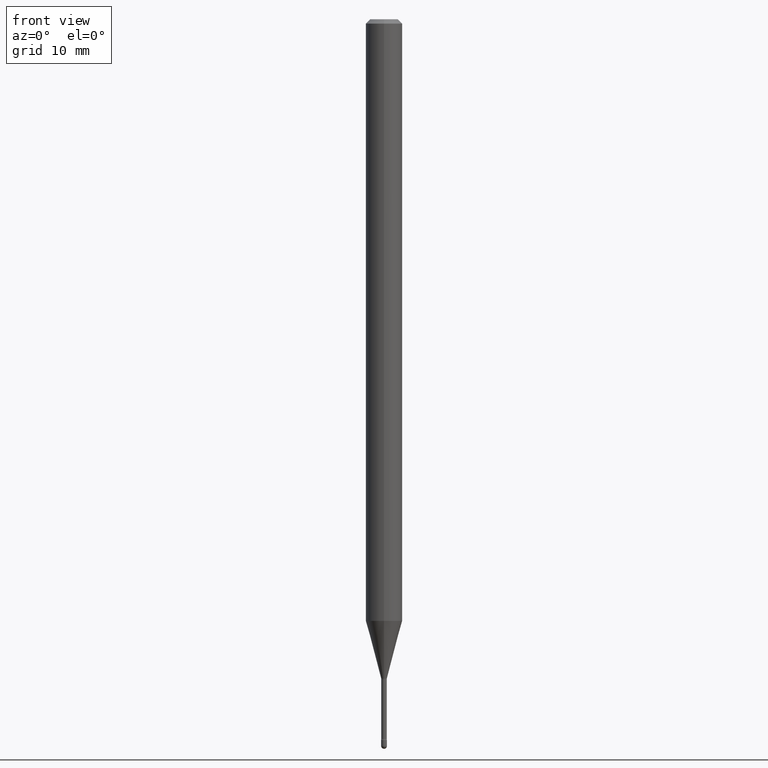
[diagram: clean part render]
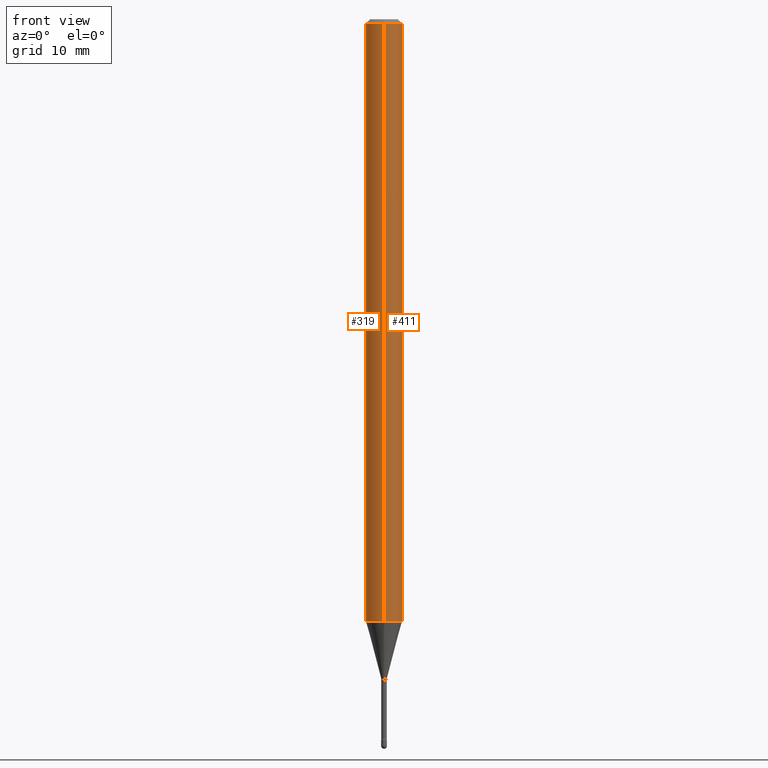
[diagram: same view with one multi-face feature highlighted, each face labeled with its STEP entity id]
A machine part, front view. The highlighted faces form ONE feature: a constant-radius fillet chain: 2 tangent blend faces with common blend radius 1.5875 mm. The faces share edges in the B-rep.
Their STEP definitions:
[1] entity #411 (Cylinder):
#6 = ORIENTED_EDGE ( 'NONE', *, *, #66, .F. ) ;
#55 = CARTESIAN_POINT ( 'NONE',  ( 4.440892098501133005E-16, 0.06249999999999995143, -0.01500000000000030129 ) ) ;
#66 = EDGE_CURVE ( 'NONE', #468, #310, #437, .T. ) ;
#73 = EDGE_CURVE ( 'NONE', #468, #186, #315, .T. ) ;
#120 = FACE_OUTER_BOUND ( 'NONE', #548, .T. ) ;
#135 = DIRECTION ( 'NONE',  ( -2.445418609158330571E-29, 3.491553223842568999E-15, 1.000000000000000000 ) ) ;
#152 = CARTESIAN_POINT ( 'NONE',  ( 3.668127913737516210E-31, -5.237329835763882687E-17, -0.01500000000000008271 ) ) ;
#155 = CARTESIAN_POINT ( 'NONE',  ( -4.364351673553912750E-16, -0.06250000000000005551, -0.01499999999999986587 ) ) ;
#167 = AXIS2_PLACEMENT_3D ( 'NONE', #152, #414, #513 ) ;
#182 = CARTESIAN_POINT ( 'NONE',  ( -4.364351673553916201E-16, -0.06250000000000000000, 6.962954753814066750E-16 ) ) ;
#183 = VERTEX_POINT ( 'NONE', #55 ) ;
#186 = VERTEX_POINT ( 'NONE', #440 ) ;
#189 = CIRCLE ( 'NONE', #167, 0.06250000000000000000 ) ;
#227 = ORIENTED_EDGE ( 'NONE', *, *, #395, .F. ) ;
#247 = CARTESIAN_POINT ( 'NONE',  ( 4.440892098500625669E-16, 0.06250000000000000000, 2.598513224010855008E-16 ) ) ;
#264 = VECTOR ( 'NONE', #452, 39.37007874015748143 ) ;
#289 = LINE ( 'NONE', #247, #264 ) ;
#307 = ORIENTED_EDGE ( 'NONE', *, *, #379, .T. ) ;
#310 = VERTEX_POINT ( 'NONE', #155 ) ;
#315 = CIRCLE ( 'NONE', #367, 0.06250000000000000000 ) ;
#327 = DIRECTION ( 'NONE',  ( -6.982962677686265922E-15, -1.000000000000000000, 3.491553223842568999E-15 ) ) ;
#353 = DIRECTION ( 'NONE',  ( -6.982962677686265922E-15, -1.000000000000000000, 4.370956789862821150E-15 ) ) ;
#367 = AXIS2_PLACEMENT_3D ( 'NONE', #484, #135, #353 ) ;
#379 = EDGE_CURVE ( 'NONE', #186, #183, #289, .T. ) ;
#385 = ORIENTED_EDGE ( 'NONE', *, *, #73, .T. ) ;
#395 = EDGE_CURVE ( 'NONE', #310, #183, #189, .T. ) ;
#401 = AXIS2_PLACEMENT_3D ( 'NONE', #410, #457, #327 ) ;
#410 = CARTESIAN_POINT ( 'NONE',  ( -1.169113584055446105E-44, 1.669184350826100908E-30, 4.780733988912460139E-16 ) ) ;
#411 = ADVANCED_FACE ( 'NONE', ( #120 ), #538, .T. ) ;
#414 = DIRECTION ( 'NONE',  ( -2.445418609158330571E-29, 3.491553223842568999E-15, 1.000000000000000000 ) ) ;
#437 = LINE ( 'NONE', #182, #556 ) ;
#440 = CARTESIAN_POINT ( 'NONE',  ( 4.440892098501128074E-16, 0.06249999999999279743, -2.061828102118093753 ) ) ;
#450 = CARTESIAN_POINT ( 'NONE',  ( -4.364351673553412316E-16, -0.06250000000000720257, -2.061828102118092865 ) ) ;
#452 = DIRECTION ( 'NONE',  ( -2.445418609158330571E-29, 3.491553223842568605E-15, 1.000000000000000000 ) ) ;
#457 = DIRECTION ( 'NONE',  ( -2.445418609158330571E-29, 3.491553223842568999E-15, 1.000000000000000000 ) ) ;
#468 = VERTEX_POINT ( 'NONE', #450 ) ;
#484 = CARTESIAN_POINT ( 'NONE',  ( 5.042032809805188543E-29, -7.198982556959635817E-15, -2.061828102118093309 ) ) ;
#486 = DIRECTION ( 'NONE',  ( -2.445418609158330571E-29, 3.491553223842568605E-15, 1.000000000000000000 ) ) ;
#513 = DIRECTION ( 'NONE',  ( -6.982962677686265922E-15, -1.000000000000000000, 3.483106191921935554E-15 ) ) ;
#538 = CYLINDRICAL_SURFACE ( 'NONE', #401, 0.06250000000000000000 ) ;
#548 = EDGE_LOOP ( 'NONE', ( #385, #307, #227, #6 ) ) ;
#556 = VECTOR ( 'NONE', #486, 39.37007874015748143 ) ;
[2] entity #319 (Cylinder):
#29 = CYLINDRICAL_SURFACE ( 'NONE', #554, 0.06250000000000000000 ) ;
#55 = CARTESIAN_POINT ( 'NONE',  ( 4.440892098501133005E-16, 0.06249999999999995143, -0.01500000000000030129 ) ) ;
#66 = EDGE_CURVE ( 'NONE', #468, #310, #437, .T. ) ;
#134 = DIRECTION ( 'NONE',  ( -2.445418609158330571E-29, 3.491553223842568999E-15, 1.000000000000000000 ) ) ;
#155 = CARTESIAN_POINT ( 'NONE',  ( -4.364351673553912750E-16, -0.06250000000000005551, -0.01499999999999986587 ) ) ;
#171 = DIRECTION ( 'NONE',  ( -6.982962677686265922E-15, -1.000000000000000000, 3.483106191921935554E-15 ) ) ;
#181 = CARTESIAN_POINT ( 'NONE',  ( 5.042032809805188543E-29, -7.198982556959635817E-15, -2.061828102118093309 ) ) ;
#182 = CARTESIAN_POINT ( 'NONE',  ( -4.364351673553916201E-16, -0.06250000000000000000, 6.962954753814066750E-16 ) ) ;
#183 = VERTEX_POINT ( 'NONE', #55 ) ;
#186 = VERTEX_POINT ( 'NONE', #440 ) ;
#202 = CARTESIAN_POINT ( 'NONE',  ( -1.169113584055446105E-44, 1.669184350826100908E-30, 4.780733988912460139E-16 ) ) ;
#204 = EDGE_CURVE ( 'NONE', #183, #310, #453, .T. ) ;
#224 = CARTESIAN_POINT ( 'NONE',  ( 3.668127913737516210E-31, -5.237329835763882687E-17, -0.01500000000000008271 ) ) ;
#226 = EDGE_CURVE ( 'NONE', #186, #468, #562, .T. ) ;
#247 = CARTESIAN_POINT ( 'NONE',  ( 4.440892098500625669E-16, 0.06250000000000000000, 2.598513224010855008E-16 ) ) ;
#264 = VECTOR ( 'NONE', #452, 39.37007874015748143 ) ;
#282 = AXIS2_PLACEMENT_3D ( 'NONE', #181, #134, #308 ) ;
#289 = LINE ( 'NONE', #247, #264 ) ;
#303 = DIRECTION ( 'NONE',  ( -6.982962677686265922E-15, -1.000000000000000000, 3.491553223842568999E-15 ) ) ;
#308 = DIRECTION ( 'NONE',  ( -6.982962677686265922E-15, -1.000000000000000000, 4.370956789862821150E-15 ) ) ;
#310 = VERTEX_POINT ( 'NONE', #155 ) ;
#319 = ADVANCED_FACE ( 'NONE', ( #459 ), #29, .T. ) ;
#343 = DIRECTION ( 'NONE',  ( -2.445418609158330571E-29, 3.491553223842568999E-15, 1.000000000000000000 ) ) ;
#374 = EDGE_LOOP ( 'NONE', ( #475, #426, #380, #525 ) ) ;
#379 = EDGE_CURVE ( 'NONE', #186, #183, #289, .T. ) ;
#380 = ORIENTED_EDGE ( 'NONE', *, *, #66, .T. ) ;
#400 = DIRECTION ( 'NONE',  ( -2.445418609158330571E-29, 3.491553223842568999E-15, 1.000000000000000000 ) ) ;
#426 = ORIENTED_EDGE ( 'NONE', *, *, #226, .T. ) ;
#437 = LINE ( 'NONE', #182, #556 ) ;
#440 = CARTESIAN_POINT ( 'NONE',  ( 4.440892098501128074E-16, 0.06249999999999279743, -2.061828102118093753 ) ) ;
#450 = CARTESIAN_POINT ( 'NONE',  ( -4.364351673553412316E-16, -0.06250000000000720257, -2.061828102118092865 ) ) ;
#452 = DIRECTION ( 'NONE',  ( -2.445418609158330571E-29, 3.491553223842568605E-15, 1.000000000000000000 ) ) ;
#453 = CIRCLE ( 'NONE', #530, 0.06250000000000000000 ) ;
#459 = FACE_OUTER_BOUND ( 'NONE', #374, .T. ) ;
#468 = VERTEX_POINT ( 'NONE', #450 ) ;
#475 = ORIENTED_EDGE ( 'NONE', *, *, #379, .F. ) ;
#486 = DIRECTION ( 'NONE',  ( -2.445418609158330571E-29, 3.491553223842568605E-15, 1.000000000000000000 ) ) ;
#525 = ORIENTED_EDGE ( 'NONE', *, *, #204, .F. ) ;
#530 = AXIS2_PLACEMENT_3D ( 'NONE', #224, #400, #171 ) ;
#554 = AXIS2_PLACEMENT_3D ( 'NONE', #202, #343, #303 ) ;
#556 = VECTOR ( 'NONE', #486, 39.37007874015748143 ) ;
#562 = CIRCLE ( 'NONE', #282, 0.06250000000000000000 ) ;